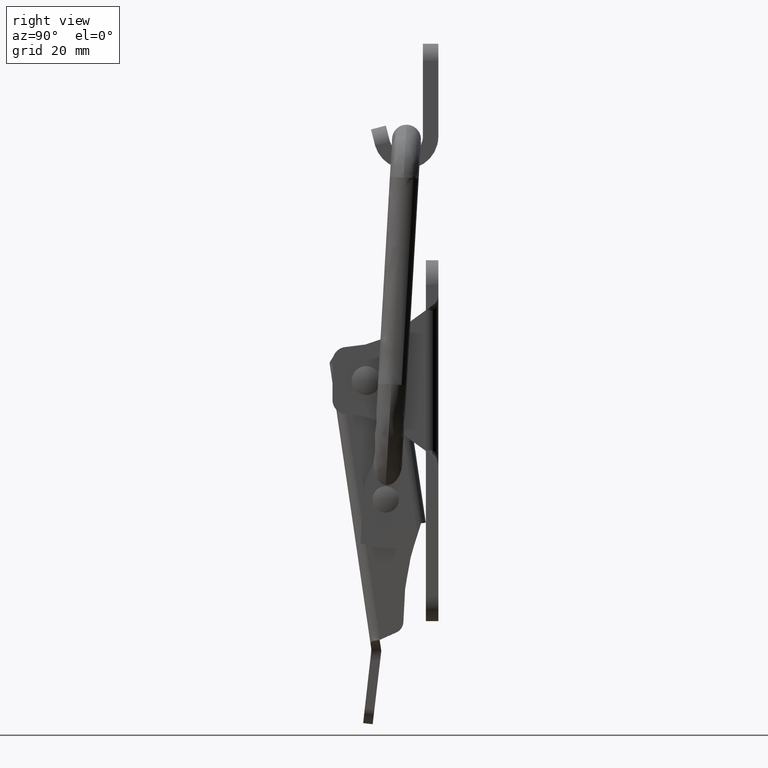
[diagram: clean part render]
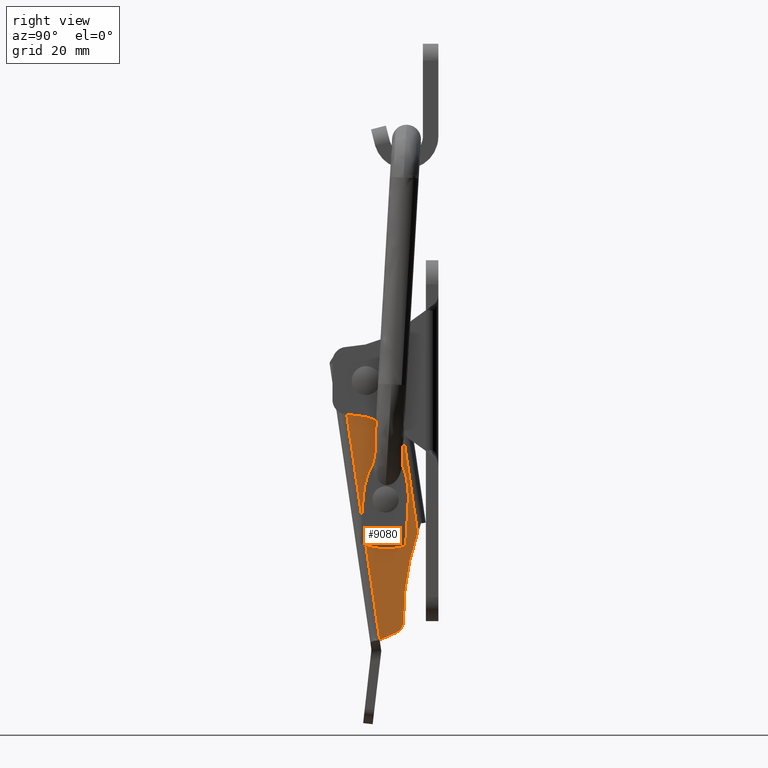
[diagram: same view with one face highlighted and labeled with its STEP entity id]
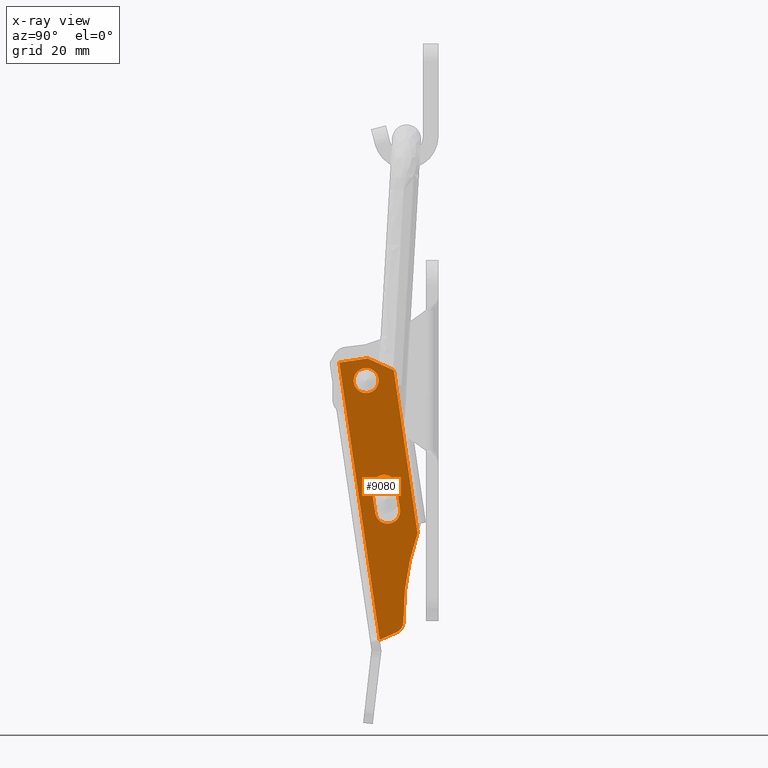
[diagram: x-ray of the same camera — body ghosted, the highlighted face saturated]
A machine part, right view. The second image highlights one B-rep face of the part: STEP entity #9080.
The next image is the same camera in x-ray: the body ghosted, the highlighted face saturated — about 0% of this face is hidden behind the body in this view.
In plain terms, the highlighted face is a freeform B-spline surface patch.
Its self-contained STEP definition (entity closure, byte-faithful):
#6548=CARTESIAN_POINT('',(-10.881824768468690,-14.0,-49.893110989245933));
#6549=VERTEX_POINT('',#6548);
#6555=CARTESIAN_POINT('',(-8.300000000000001,-14.0,-52.799999999999997));
#6556=VERTEX_POINT('',#6555);
#6557=CARTESIAN_POINT('',(-10.881824768468686,-14.000000000000004,-49.893110989245933));
#6558=CARTESIAN_POINT('',(-10.899999999999995,-14.000000000000004,-50.046017288251704));
#6559=CARTESIAN_POINT('',(-10.900000000000000,-14.0,-50.200000000000003));
#6560=CARTESIAN_POINT('',(-10.900000000000000,-13.999999999999998,-52.799999999999990));
#6561=CARTESIAN_POINT('',(-8.300000000000001,-14.0,-52.799999999999997));
#6569=(BOUNDED_CURVE()B_SPLINE_CURVE(2,(#6557,#6558,#6559,#6560,#6561),.UNSPECIFIED.,.F.,.U.)B_SPLINE_CURVE_WITH_KNOTS((3,2,3),(0.229562473431007,0.250000000000000,0.500000000000000),.UNSPECIFIED.)CURVE()GEOMETRIC_REPRESENTATION_ITEM()RATIONAL_B_SPLINE_CURVE((0.956026754021993,0.976055948234488,1.0,0.707106781186548,1.0))REPRESENTATION_ITEM(''));
#6570=EDGE_CURVE('',#6549,#6556,#6569,.T.);
#6572=CARTESIAN_POINT('',(-5.704849524143499,-14.0,-50.358726203450367));
#6573=VERTEX_POINT('',#6572);
#6574=CARTESIAN_POINT('',(-8.300000000000001,-14.0,-52.799999999999997));
#6575=CARTESIAN_POINT('',(-5.854164227291096,-14.000000000000005,-52.799999999999983));
#6576=CARTESIAN_POINT('',(-5.704849524143499,-13.999999999999996,-50.358726203450374));
#6584=(BOUNDED_CURVE()B_SPLINE_CURVE(2,(#6574,#6575,#6576),.UNSPECIFIED.,.F.,.U.)B_SPLINE_CURVE_WITH_KNOTS((3,3),(0.500000000000000,0.739332962154237),.UNSPECIFIED.)CURVE()GEOMETRIC_REPRESENTATION_ITEM()RATIONAL_B_SPLINE_CURVE((1.0,0.719603993385949,0.976072041485177))REPRESENTATION_ITEM(''));
#6585=EDGE_CURVE('',#6556,#6573,#6584,.T.);
#6659=CARTESIAN_POINT('',(-8.300000000000001,-14.0,-47.600000000000001));
#6660=VERTEX_POINT('',#6659);
#6661=CARTESIAN_POINT('',(-5.704849524143499,-14.000000000000002,-50.358726203450374));
#6662=CARTESIAN_POINT('',(-5.700000000000000,-13.999999999999996,-50.279437185237924));
#6663=CARTESIAN_POINT('',(-5.700000000000000,-14.0,-50.200000000000003));
#6664=CARTESIAN_POINT('',(-5.699999999999999,-13.999999999999998,-47.600000000000001));
#6665=CARTESIAN_POINT('',(-8.300000000000001,-14.0,-47.600000000000001));
#6673=(BOUNDED_CURVE()B_SPLINE_CURVE(2,(#6661,#6662,#6663,#6664,#6665),.UNSPECIFIED.,.F.,.U.)B_SPLINE_CURVE_WITH_KNOTS((3,2,3),(0.739332962154238,0.750000000000000,1.0),.UNSPECIFIED.)CURVE()GEOMETRIC_REPRESENTATION_ITEM()RATIONAL_B_SPLINE_CURVE((0.976072041485179,0.987502787800600,1.0,0.707106781186548,1.0))REPRESENTATION_ITEM(''));
#6674=EDGE_CURVE('',#6573,#6660,#6673,.T.);
#6676=CARTESIAN_POINT('',(-8.300000000000001,-14.0,-47.600000000000001));
#6677=CARTESIAN_POINT('',(-10.609253766308930,-14.0,-47.600000000000001));
#6678=CARTESIAN_POINT('',(-10.881824768468688,-14.000000000000005,-49.893110989245926));
#6686=(BOUNDED_CURVE()B_SPLINE_CURVE(2,(#6676,#6677,#6678),.UNSPECIFIED.,.F.,.U.)B_SPLINE_CURVE_WITH_KNOTS((3,3),(0.0,0.229562473431007),.UNSPECIFIED.)CURVE()GEOMETRIC_REPRESENTATION_ITEM()RATIONAL_B_SPLINE_CURVE((1.0,0.731050832952059,0.956026754021993))REPRESENTATION_ITEM(''));
#6687=EDGE_CURVE('',#6660,#6549,#6686,.T.);
#7020=CARTESIAN_POINT('',(-13.300000000000001,-13.999996023572301,-103.934133463108000));
#7021=VERTEX_POINT('',#7020);
#7226=CARTESIAN_POINT('',(-7.857875644552469,-14.0,-100.836162001379190));
#7227=VERTEX_POINT('',#7226);
#7233=CARTESIAN_POINT('',(-9.659620469921661,-14.0,-102.911410402462390));
#7234=VERTEX_POINT('',#7233);
#7235=CARTESIAN_POINT('',(-9.659620469921638,-14.0,-102.911410402462490));
#7236=CARTESIAN_POINT('',(-8.076036906268211,-14.000000000000004,-102.466520682688470));
#7237=CARTESIAN_POINT('',(-7.857875644552457,-14.0,-100.836162001379190));
#7245=(BOUNDED_CURVE()B_SPLINE_CURVE(2,(#7235,#7236,#7237),.UNSPECIFIED.,.F.,.U.)CURVE()GEOMETRIC_REPRESENTATION_ITEM()QUASI_UNIFORM_CURVE()RATIONAL_B_SPLINE_CURVE((1.0,0.835393551760046,1.0))REPRESENTATION_ITEM(''));
#7246=EDGE_CURVE('',#7234,#7227,#7245,.T.);
#7515=CARTESIAN_POINT('',(-5.200000000000000,-14.0,-72.700000000000003));
#7516=VERTEX_POINT('',#7515);
#7522=CARTESIAN_POINT('',(-10.400000000000000,-14.0,-72.700000000000003));
#7523=VERTEX_POINT('',#7522);
#7524=CARTESIAN_POINT('',(-5.200000000000000,-14.0,-72.700000000000003));
#7525=CARTESIAN_POINT('',(-5.199999999999999,-13.999999999999998,-70.099999999999994));
#7526=CARTESIAN_POINT('',(-7.800000000000000,-14.0,-70.099999999999994));
#7527=CARTESIAN_POINT('',(-10.400000000000000,-13.999999999999998,-70.099999999999994));
#7528=CARTESIAN_POINT('',(-10.400000000000000,-14.0,-72.700000000000003));
#7536=(BOUNDED_CURVE()B_SPLINE_CURVE(2,(#7524,#7525,#7526,#7527,#7528),.UNSPECIFIED.,.F.,.U.)B_SPLINE_CURVE_WITH_KNOTS((3,2,3),(0.0,0.500000000000000,1.0),.UNSPECIFIED.)CURVE()GEOMETRIC_REPRESENTATION_ITEM()RATIONAL_B_SPLINE_CURVE((1.0,0.707106781186548,1.0,0.707106781186548,1.0))REPRESENTATION_ITEM(''));
#7537=EDGE_CURVE('',#7516,#7523,#7536,.T.);
#7570=CARTESIAN_POINT('',(-10.400000000000000,-14.0,-77.700000000000003));
#7571=VERTEX_POINT('',#7570);
#7572=CARTESIAN_POINT('',(-10.400000000000000,-14.0,-72.700000000000003));
#7573=CARTESIAN_POINT('',(-10.400000000000000,-14.0,-77.700000000000003));
#7574=QUASI_UNIFORM_CURVE('',1,(#7572,#7573),.UNSPECIFIED.,.F.,.U.);
#7575=EDGE_CURVE('',#7523,#7571,#7574,.T.);
#7611=CARTESIAN_POINT('',(-5.200000000000000,-14.0,-77.700000000000003));
#7612=VERTEX_POINT('',#7611);
#7613=CARTESIAN_POINT('',(-10.400000000000000,-14.0,-77.700000000000003));
#7614=CARTESIAN_POINT('',(-10.400000000000000,-13.999999999999998,-80.300000000000011));
#7615=CARTESIAN_POINT('',(-7.800000000000000,-14.0,-80.300000000000011));
#7616=CARTESIAN_POINT('',(-5.199999999999999,-13.999999999999998,-80.300000000000011));
#7617=CARTESIAN_POINT('',(-5.200000000000000,-14.0,-77.700000000000003));
#7625=(BOUNDED_CURVE()B_SPLINE_CURVE(2,(#7613,#7614,#7615,#7616,#7617),.UNSPECIFIED.,.F.,.U.)B_SPLINE_CURVE_WITH_KNOTS((3,2,3),(0.0,0.500000000000000,1.0),.UNSPECIFIED.)CURVE()GEOMETRIC_REPRESENTATION_ITEM()RATIONAL_B_SPLINE_CURVE((1.0,0.707106781186548,1.0,0.707106781186548,1.0))REPRESENTATION_ITEM(''));
#7626=EDGE_CURVE('',#7571,#7612,#7625,.T.);
#7659=CARTESIAN_POINT('',(-5.200000000000000,-14.0,-77.700000000000003));
#7660=CARTESIAN_POINT('',(-5.200000000000000,-14.0,-72.700000000000003));
#7661=QUASI_UNIFORM_CURVE('',1,(#7659,#7660),.UNSPECIFIED.,.F.,.U.);
#7662=EDGE_CURVE('',#7612,#7516,#7661,.T.);
#7808=CARTESIAN_POINT('',(-13.300000000000001,-14.0,-45.700000000000003));
#7809=VERTEX_POINT('',#7808);
#7829=CARTESIAN_POINT('',(-13.300000000000001,-14.0,-45.700000000000003));
#7830=CARTESIAN_POINT('',(-13.300000000000001,-13.999996023572301,-103.934133463108000));
#7831=QUASI_UNIFORM_CURVE('',1,(#7829,#7830),.UNSPECIFIED.,.F.,.U.);
#7832=EDGE_CURVE('',#7809,#7021,#7831,.T.);
#7875=CARTESIAN_POINT('',(-2.299999999999955,-14.0,-48.914285714285697));
#7876=VERTEX_POINT('',#7875);
#7890=CARTESIAN_POINT('',(-2.299999999999955,-14.0,-83.062037181617598));
#7891=VERTEX_POINT('',#7890);
#7892=CARTESIAN_POINT('',(-2.299999999999955,-14.0,-83.062037181617598));
#7893=CARTESIAN_POINT('',(-2.299999999999955,-14.0,-48.914285714285697));
#7894=QUASI_UNIFORM_CURVE('',1,(#7892,#7893),.UNSPECIFIED.,.F.,.U.);
#7895=EDGE_CURVE('',#7891,#7876,#7894,.T.);
#8832=CARTESIAN_POINT('',(-7.300000000000201,-14.0,-45.700000000000003));
#8833=VERTEX_POINT('',#8832);
#8834=CARTESIAN_POINT('',(-2.299999999999955,-14.0,-48.914285714285697));
#8835=CARTESIAN_POINT('',(-7.300000000000201,-14.0,-45.700000000000003));
#8836=QUASI_UNIFORM_CURVE('',1,(#8834,#8835),.UNSPECIFIED.,.F.,.U.);
#8837=EDGE_CURVE('',#7876,#8833,#8836,.T.);
#8898=CARTESIAN_POINT('',(-2.299999999999920,-14.0,-83.062037181617583));
#8899=CARTESIAN_POINT('',(-6.604834687869342,-13.999999999999996,-91.471959641634299));
#8900=CARTESIAN_POINT('',(-7.857875644552433,-14.0,-100.836162001379190));
#8908=(BOUNDED_CURVE()B_SPLINE_CURVE(2,(#8898,#8899,#8900),.UNSPECIFIED.,.F.,.U.)CURVE()GEOMETRIC_REPRESENTATION_ITEM()QUASI_UNIFORM_CURVE()RATIONAL_B_SPLINE_CURVE((1.0,0.985577887587621,1.0))REPRESENTATION_ITEM(''));
#8909=EDGE_CURVE('',#7891,#7227,#8908,.T.);
#8925=CARTESIAN_POINT('',(-13.300000000000001,-13.999996023572301,-103.934133463108000));
#8926=CARTESIAN_POINT('',(-9.659620469921661,-14.0,-102.911410402462390));
#8927=QUASI_UNIFORM_CURVE('',1,(#8925,#8926),.UNSPECIFIED.,.F.,.U.);
#8928=EDGE_CURVE('',#7021,#7234,#8927,.T.);
#9038=CARTESIAN_POINT('',(-7.300000000000201,-14.0,-45.700000000000003));
#9039=CARTESIAN_POINT('',(-13.300000000000001,-14.0,-45.700000000000003));
#9040=QUASI_UNIFORM_CURVE('',1,(#9038,#9039),.UNSPECIFIED.,.F.,.U.);
#9041=EDGE_CURVE('',#8833,#7809,#9040,.T.);
#9054=CARTESIAN_POINT('',(-13.849450185200130,-14.0,-42.791205693047182));
#9055=CARTESIAN_POINT('',(-1.750549716452165,-14.0,-42.791205693047182));
#9056=CARTESIAN_POINT('',(-13.849450185200130,-14.0,-106.842929852675700));
#9057=CARTESIAN_POINT('',(-1.750549716452165,-14.0,-106.842929852675700));
#9058=B_SPLINE_SURFACE_WITH_KNOTS('',1,1,((#9054,#9056),(#9055,#9057)),.UNSPECIFIED.,.F.,.F.,.U.,(2,2),(2,2),(0.0,12.098900468747960),(0.0,64.051724159628563),.UNSPECIFIED.);
#9059=ORIENTED_EDGE('',*,*,#8928,.T.);
#9060=ORIENTED_EDGE('',*,*,#7246,.T.);
#9061=ORIENTED_EDGE('',*,*,#8909,.F.);
#9062=ORIENTED_EDGE('',*,*,#7895,.T.);
#9063=ORIENTED_EDGE('',*,*,#8837,.T.);
#9064=ORIENTED_EDGE('',*,*,#9041,.T.);
#9065=ORIENTED_EDGE('',*,*,#7832,.T.);
#9066=EDGE_LOOP('',(#9059,#9060,#9061,#9062,#9063,#9064,#9065));
#9067=FACE_OUTER_BOUND('',#9066,.T.);
#9068=ORIENTED_EDGE('',*,*,#7537,.F.);
#9069=ORIENTED_EDGE('',*,*,#7662,.F.);
#9070=ORIENTED_EDGE('',*,*,#7626,.F.);
#9071=ORIENTED_EDGE('',*,*,#7575,.F.);
#9072=EDGE_LOOP('',(#9068,#9069,#9070,#9071));
#9073=FACE_BOUND('',#9072,.T.);
#9074=ORIENTED_EDGE('',*,*,#6585,.F.);
#9075=ORIENTED_EDGE('',*,*,#6570,.F.);
#9076=ORIENTED_EDGE('',*,*,#6687,.F.);
#9077=ORIENTED_EDGE('',*,*,#6674,.F.);
#9078=EDGE_LOOP('',(#9074,#9075,#9076,#9077));
#9079=FACE_BOUND('',#9078,.T.);
#9080=ADVANCED_FACE('',(#9067,#9073,#9079),#9058,.F.);